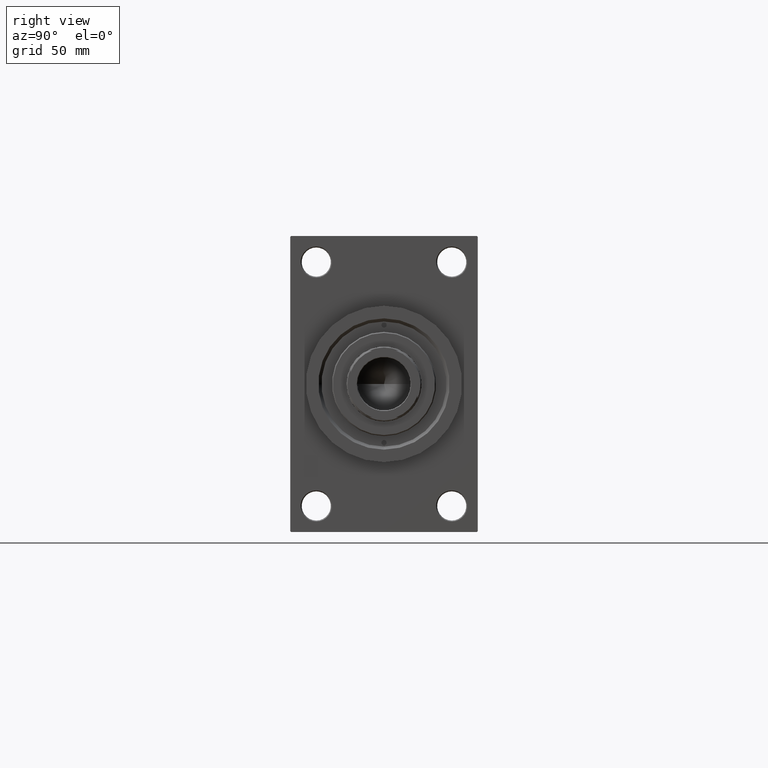
[diagram: clean part render]
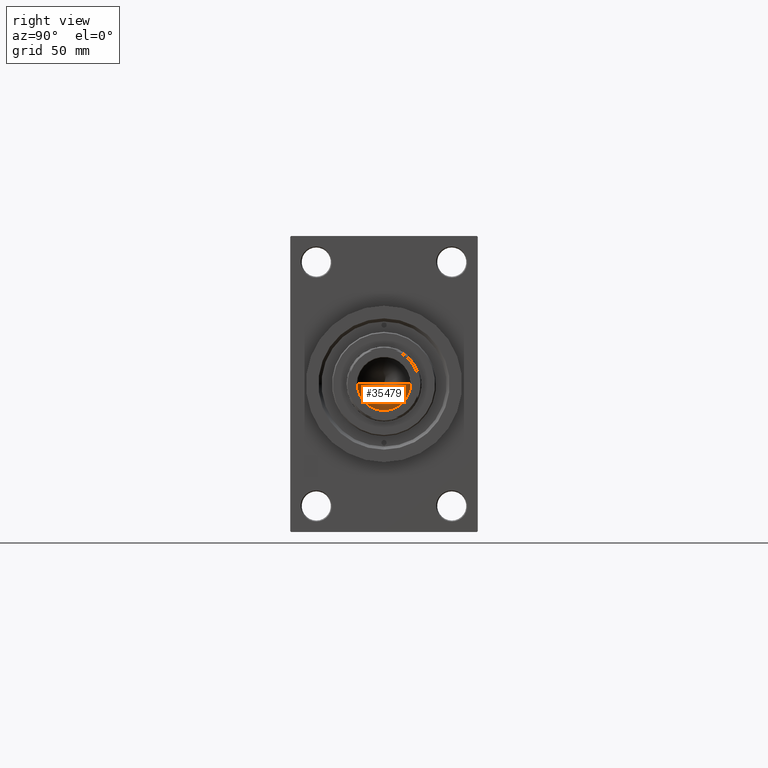
[diagram: same view with one face highlighted and labeled with its STEP entity id]
A machine part, right view. The second image highlights one B-rep face of the part: STEP entity #35479.
In plain terms, the highlighted conical surface has half-angle 59 deg.
Its self-contained STEP definition (entity closure, byte-faithful):
#2193 = LINE ( 'NONE', #35031, #18992 ) ;
#3758 = EDGE_CURVE ( 'NONE', #12802, #9886, #22045, .T. ) ;
#9886 = VERTEX_POINT ( 'NONE', #19483 ) ;
#11696 = CARTESIAN_POINT ( 'NONE',  ( -1.410643066818227497E-14, 0.000000000000000000, 202.3390271073986071 ) ) ;
#12030 = FACE_OUTER_BOUND ( 'NONE', #19001, .T. ) ;
#12802 = VERTEX_POINT ( 'NONE', #23829 ) ;
#13862 = DIRECTION ( 'NONE',  ( 0.8571673007021110013, 0.000000000000000000, 0.5150380749100563760 ) ) ;
#15853 = VECTOR ( 'NONE', #13862, 1000.000000000000000 ) ;
#16877 = VERTEX_POINT ( 'NONE', #11696 ) ;
#18992 = VECTOR ( 'NONE', #28311, 1000.000000000000000 ) ;
#19001 = EDGE_LOOP ( 'NONE', ( #34595, #45619, #20259 ) ) ;
#19483 = CARTESIAN_POINT ( 'NONE',  ( -12.74999999999998934, 1.561424668912873928E-15, 210.0000000000000284 ) ) ;
#20259 = ORIENTED_EDGE ( 'NONE', *, *, #3758, .T. ) ;
#21919 = EDGE_CURVE ( 'NONE', #16877, #12802, #28738, .T. ) ;
#22045 = CIRCLE ( 'NONE', #32756, 12.74999999999998934 ) ;
#23829 = CARTESIAN_POINT ( 'NONE',  ( 12.74999999999998934, 0.000000000000000000, 210.0000000000000284 ) ) ;
#26148 = AXIS2_PLACEMENT_3D ( 'NONE', #26652, #28064, #27354 ) ;
#26652 = CARTESIAN_POINT ( 'NONE',  ( 0.000000000000000000, 0.000000000000000000, 210.0000000000000284 ) ) ;
#27354 = DIRECTION ( 'NONE',  ( 1.000000000000000000, 0.000000000000000000, 0.000000000000000000 ) ) ;
#28064 = DIRECTION ( 'NONE',  ( -0.000000000000000000, -0.000000000000000000, 1.000000000000000000 ) ) ;
#28311 = DIRECTION ( 'NONE',  ( -0.8571673007021110013, 1.049727191138617093E-16, 0.5150380749100563760 ) ) ;
#28440 = EDGE_CURVE ( 'NONE', #16877, #9886, #2193, .T. ) ;
#28738 = LINE ( 'NONE', #46723, #15853 ) ;
#29243 = CONICAL_SURFACE ( 'NONE', #26148, 12.74999999999998934, 1.029744258676651869 ) ;
#30181 = CARTESIAN_POINT ( 'NONE',  ( 0.000000000000000000, 0.000000000000000000, 210.0000000000000284 ) ) ;
#32756 = AXIS2_PLACEMENT_3D ( 'NONE', #30181, #37371, #44576 ) ;
#34595 = ORIENTED_EDGE ( 'NONE', *, *, #28440, .F. ) ;
#35031 = CARTESIAN_POINT ( 'NONE',  ( -12.74999999999998934, 1.561424668912873928E-15, 210.0000000000000284 ) ) ;
#35479 = ADVANCED_FACE ( 'NONE', ( #12030 ), #29243, .F. ) ;
#37371 = DIRECTION ( 'NONE',  ( -0.000000000000000000, -0.000000000000000000, 1.000000000000000000 ) ) ;
#44576 = DIRECTION ( 'NONE',  ( 1.000000000000000000, 0.000000000000000000, 0.000000000000000000 ) ) ;
#45619 = ORIENTED_EDGE ( 'NONE', *, *, #21919, .T. ) ;
#46723 = CARTESIAN_POINT ( 'NONE',  ( 12.74999999999998934, 0.000000000000000000, 210.0000000000000284 ) ) ;